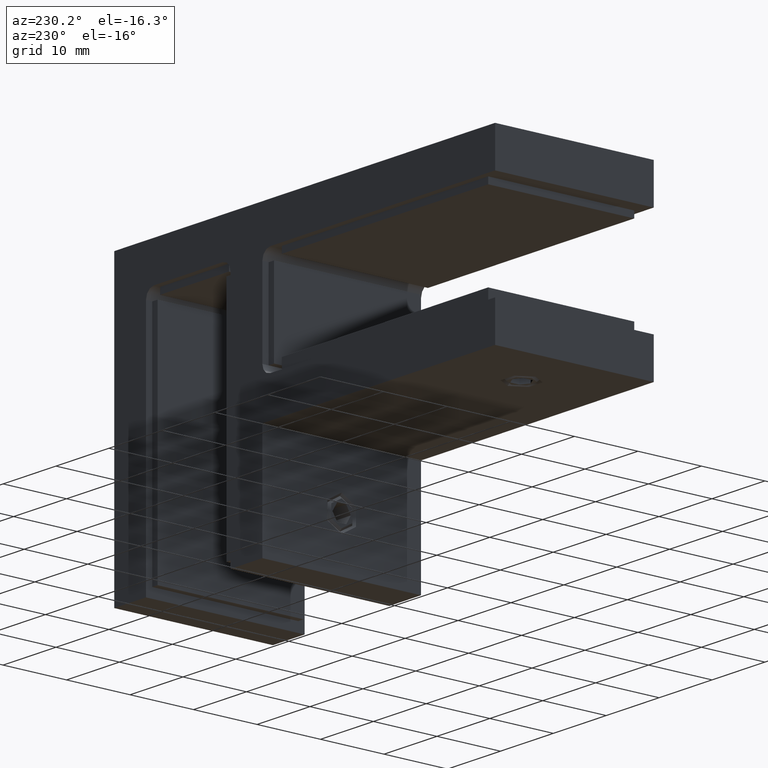
[diagram: clean part render]
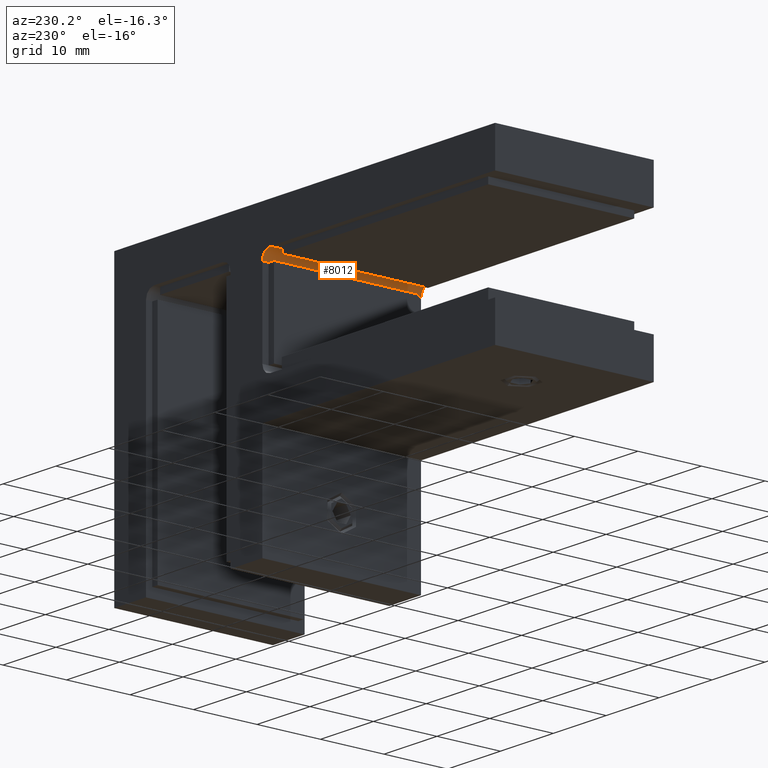
[diagram: same view with one face highlighted and labeled with its STEP entity id]
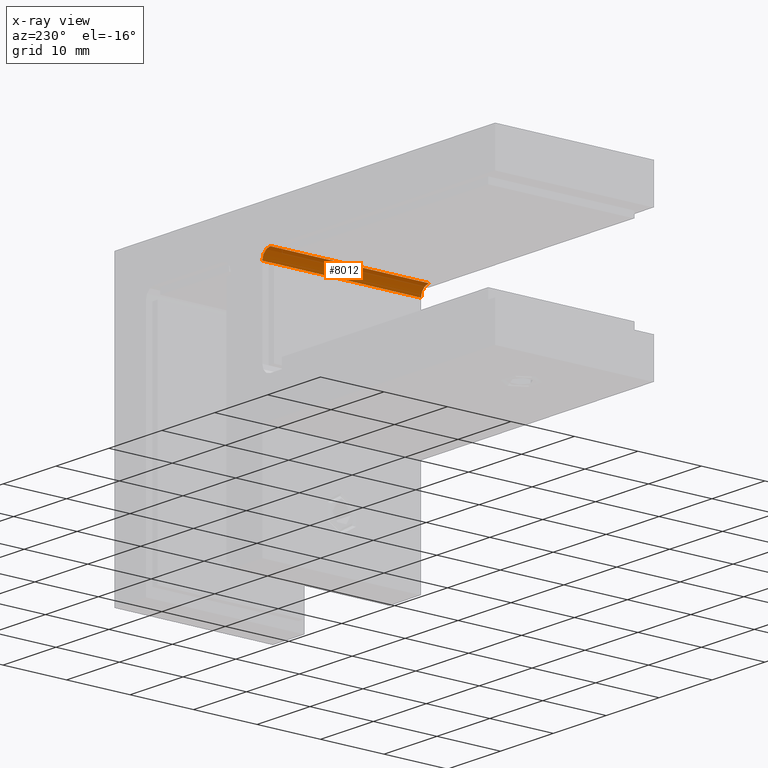
[diagram: x-ray of the same camera — body ghosted, the highlighted face saturated]
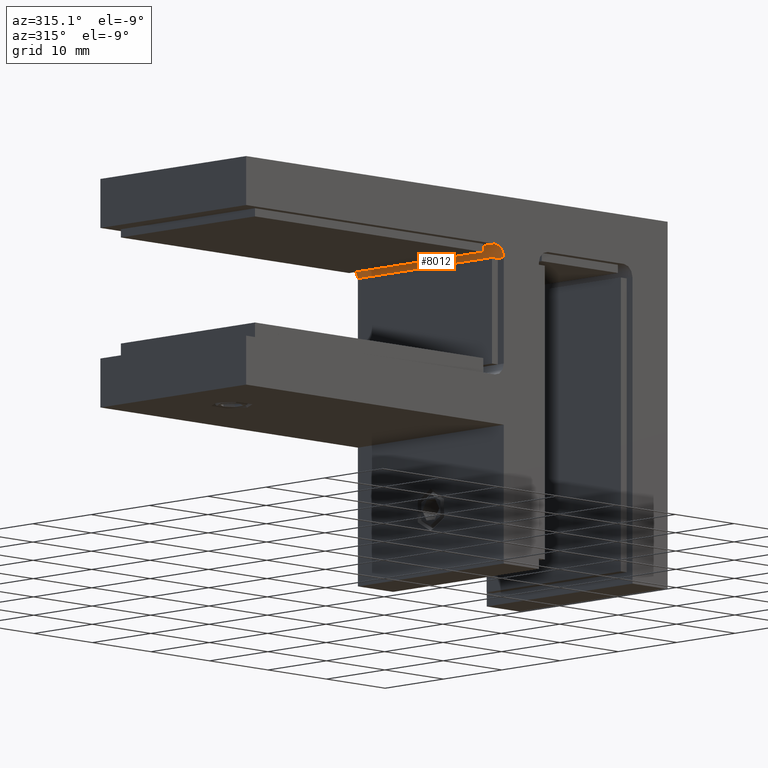
[diagram: same view with one face highlighted and labeled with its STEP entity id]
A machine part, auxiliary view. The second image highlights one B-rep face of the part: STEP entity #8012.
The next image is the same camera in x-ray: the body ghosted, the highlighted face saturated — about 0% of this face is hidden behind the body in this view.
A second angle (auxiliary view) of the same face is appended — the face is thin or edge-on in the first view.
In plain terms, the highlighted cylindrical surface (edge-blend (fillet) strip) has radius 1.5 mm, axis along (0, 1, 0).
Its self-contained STEP definition (entity closure, byte-faithful):
#36 = CIRCLE ( 'NONE', #13136, 1.499999999999999556 ) ;
#458 = VERTEX_POINT ( 'NONE', #5651 ) ;
#541 = DIRECTION ( 'NONE',  ( 0.000000000000000000, 0.000000000000000000, 1.000000000000000000 ) ) ;
#908 = VECTOR ( 'NONE', #15031, 1000.000000000000000 ) ;
#1489 = CARTESIAN_POINT ( 'NONE',  ( 6.500000000000004441, 12.50000000000000000, 14.99999999999999467 ) ) ;
#1886 = EDGE_CURVE ( 'NONE', #11143, #3971, #8634, .T. ) ;
#1996 = AXIS2_PLACEMENT_3D ( 'NONE', #17187, #12212, #541 ) ;
#2534 = ORIENTED_EDGE ( 'NONE', *, *, #4364, .F. ) ;
#2621 = CIRCLE ( 'NONE', #9327, 1.499999999999999556 ) ;
#3198 = CARTESIAN_POINT ( 'NONE',  ( 8.000000000000003553, 12.50000000000000000, 14.99999999999999467 ) ) ;
#3315 = DIRECTION ( 'NONE',  ( -0.000000000000000000, 1.000000000000000000, -0.000000000000000000 ) ) ;
#3971 = VERTEX_POINT ( 'NONE', #3198 ) ;
#4180 = EDGE_LOOP ( 'NONE', ( #2534, #9729, #12196, #6089 ) ) ;
#4364 = EDGE_CURVE ( 'NONE', #3971, #10090, #36, .T. ) ;
#4972 = CARTESIAN_POINT ( 'NONE',  ( 6.500000000000004441, -12.50000000000000000, 16.49999999999999289 ) ) ;
#5651 = CARTESIAN_POINT ( 'NONE',  ( 6.500000000000004441, -12.50000000000000000, 16.49999999999999289 ) ) ;
#6089 = ORIENTED_EDGE ( 'NONE', *, *, #16505, .F. ) ;
#8012 = ADVANCED_FACE ( 'NONE', ( #14518 ), #21043, .F. ) ;
#8634 = LINE ( 'NONE', #21456, #9154 ) ;
#9154 = VECTOR ( 'NONE', #3315, 1000.000000000000000 ) ;
#9249 = CARTESIAN_POINT ( 'NONE',  ( 6.500000000000004441, -12.50000000000000000, 14.99999999999999467 ) ) ;
#9327 = AXIS2_PLACEMENT_3D ( 'NONE', #9249, #11141, #9469 ) ;
#9469 = DIRECTION ( 'NONE',  ( 0.000000000000000000, 0.000000000000000000, 1.000000000000000000 ) ) ;
#9729 = ORIENTED_EDGE ( 'NONE', *, *, #1886, .F. ) ;
#10090 = VERTEX_POINT ( 'NONE', #11892 ) ;
#11141 = DIRECTION ( 'NONE',  ( 0.000000000000000000, 1.000000000000000000, 0.000000000000000000 ) ) ;
#11143 = VERTEX_POINT ( 'NONE', #11636 ) ;
#11636 = CARTESIAN_POINT ( 'NONE',  ( 8.000000000000003553, -12.50000000000000000, 14.99999999999999467 ) ) ;
#11892 = CARTESIAN_POINT ( 'NONE',  ( 6.500000000000004441, 12.50000000000000000, 16.49999999999999289 ) ) ;
#12196 = ORIENTED_EDGE ( 'NONE', *, *, #13018, .F. ) ;
#12212 = DIRECTION ( 'NONE',  ( -0.000000000000000000, 1.000000000000000000, 0.000000000000000000 ) ) ;
#13018 = EDGE_CURVE ( 'NONE', #458, #11143, #2621, .T. ) ;
#13136 = AXIS2_PLACEMENT_3D ( 'NONE', #1489, #14819, #20152 ) ;
#14518 = FACE_OUTER_BOUND ( 'NONE', #4180, .T. ) ;
#14819 = DIRECTION ( 'NONE',  ( -0.000000000000000000, -1.000000000000000000, -0.000000000000000000 ) ) ;
#15031 = DIRECTION ( 'NONE',  ( 0.000000000000000000, -1.000000000000000000, 0.000000000000000000 ) ) ;
#16505 = EDGE_CURVE ( 'NONE', #10090, #458, #19718, .T. ) ;
#17187 = CARTESIAN_POINT ( 'NONE',  ( 6.500000000000004441, 12.50000000000000000, 14.99999999999999467 ) ) ;
#19718 = LINE ( 'NONE', #4972, #908 ) ;
#20152 = DIRECTION ( 'NONE',  ( 0.000000000000000000, 0.000000000000000000, 1.000000000000000000 ) ) ;
#21043 = CYLINDRICAL_SURFACE ( 'NONE', #1996, 1.499999999999999556 ) ;
#21456 = CARTESIAN_POINT ( 'NONE',  ( 8.000000000000003553, 12.50000000000000000, 14.99999999999999467 ) ) ;